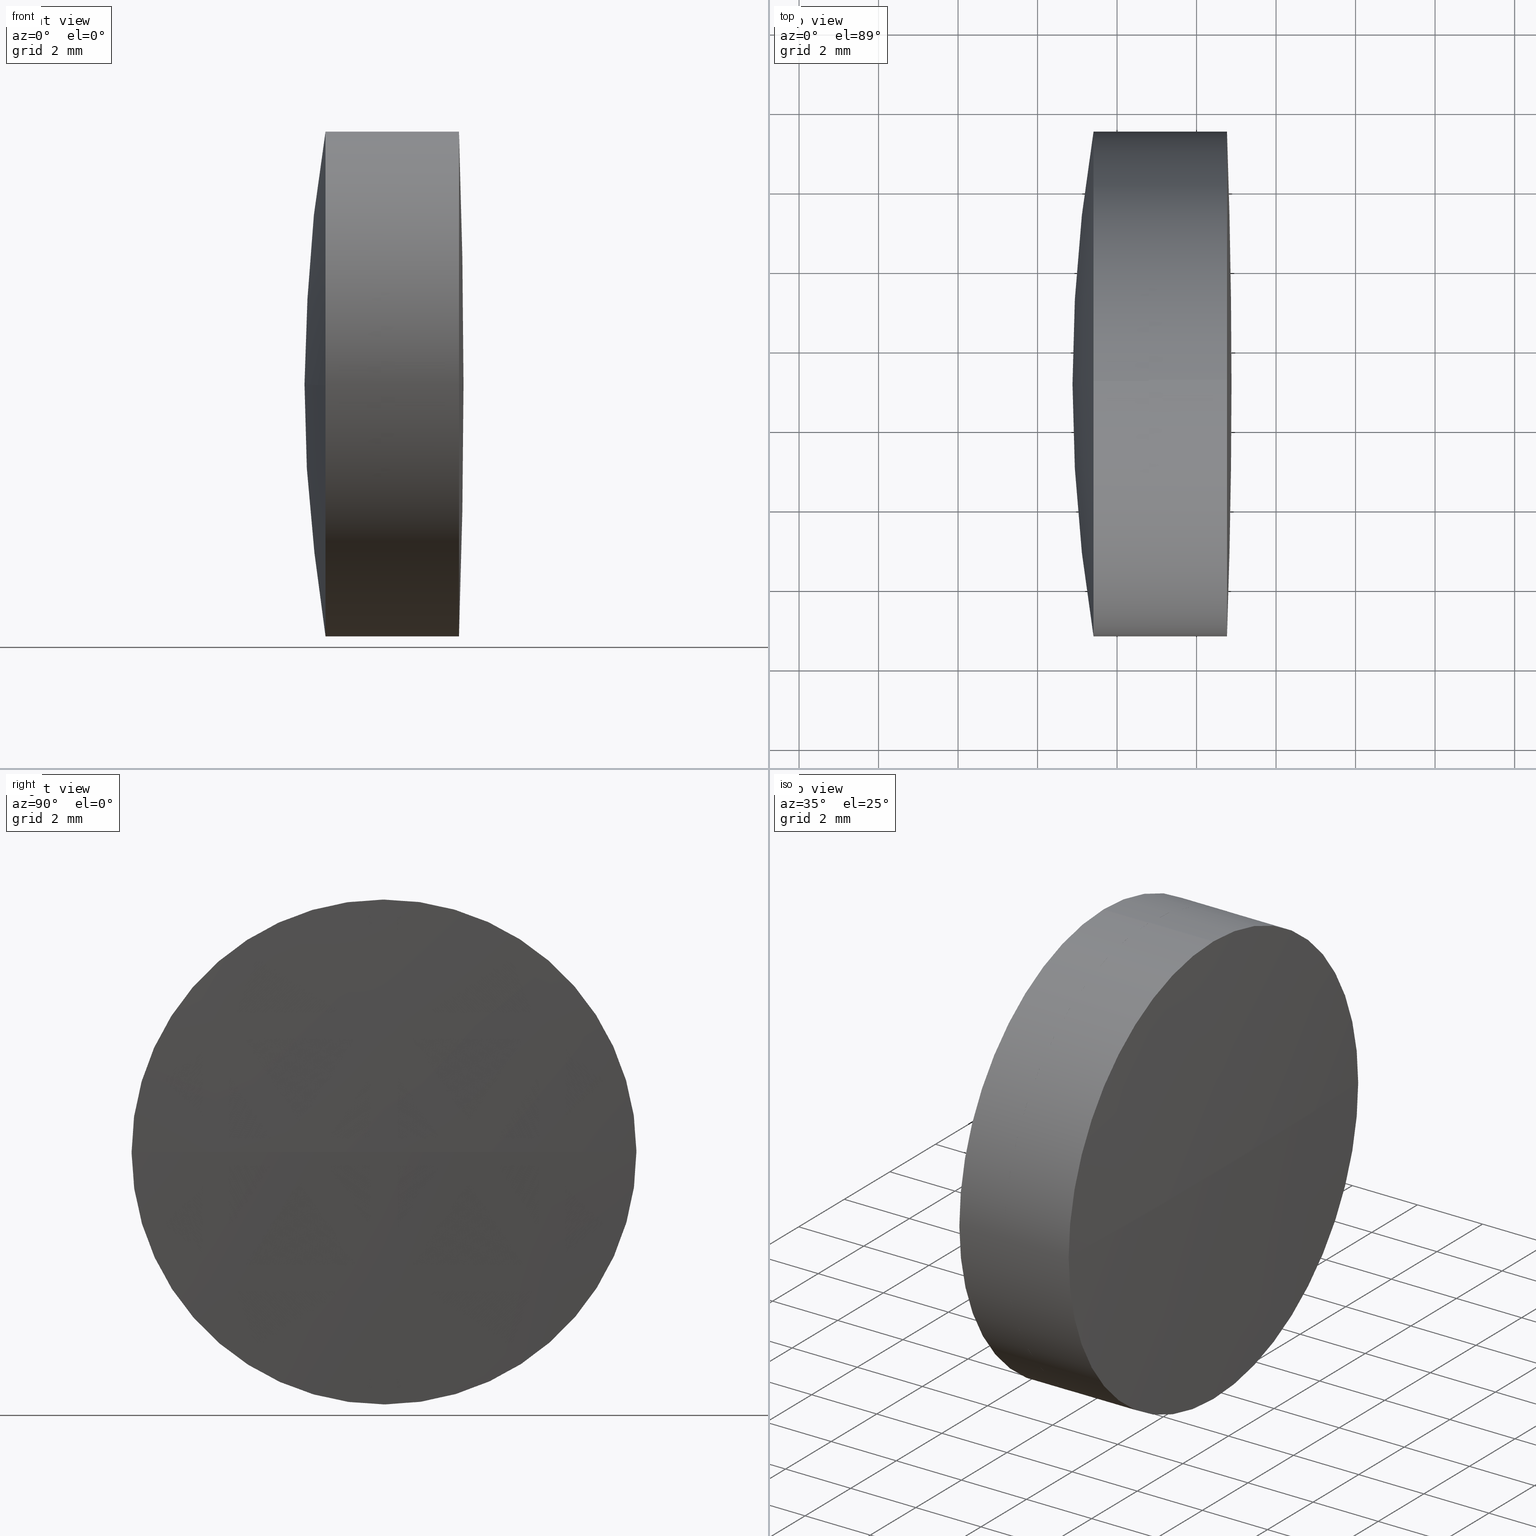
[diagram: canonical four-view strip — front | top / right | iso, engineering-drawing reading convention]
A machine part, canonical four-view strip (front | top / right | iso — engineering-drawing reading convention). The complete STEP part file that produces these views, byte-faithful:
ISO-10303-21;
HEADER;
FILE_DESCRIPTION (( 'STEP AP203' ),
    '1' );
FILE_NAME ('145274.STEP',
    '2024-05-11T05:44:10',
    ( '' ),
    ( '' ),
    'SwSTEP 2.0',
    'SolidWorks 2020',
    '' );
FILE_SCHEMA (( 'CONFIG_CONTROL_DESIGN' ));
ENDSEC;

DATA;
#1 = AXIS2_PLACEMENT_3D ( 'NONE', #147, #36, #34 ) ;
#2 = CARTESIAN_POINT ( 'NONE',  ( 1.407591367722822895, 7.105468109940516364, 3.623841861633804095E-15 ) ) ;
#3 = VERTEX_POINT ( 'NONE', #155 ) ;
#4 = CARTESIAN_POINT ( 'NONE',  ( 39.23836059067149762, 7.105468109940514587, 7.561397270752400406E-15 ) ) ;
#5 = ORIENTED_EDGE ( 'NONE', *, *, #420, .F. ) ;
#6 = CARTESIAN_POINT ( 'NONE',  ( -31.58163940932850977, 7.105468109940518140, 1.902769656164251920E-16 ) ) ;
#7 = ADVANCED_FACE ( 'NONE', ( #259 ), #385, .T. ) ;
#8 = APPLICATION_PROTOCOL_DEFINITION ( 'international standard', 'config_control_design', 1994, #142 ) ;
#9 = DIRECTION ( 'NONE',  ( 1.000000000000000000, -3.773785889902083684E-17, 1.040834085586084010E-16 ) ) ;
#10 = APPLICATION_PROTOCOL_DEFINITION ( 'international standard', 'config_control_design', 1994, #307 ) ;
#11 = ADVANCED_FACE ( 'NONE', ( #390 ), #284, .F. ) ;
#12 = DIRECTION ( 'NONE',  ( -0.000000000000000000, 0.000000000000000000, -1.000000000000000000 ) ) ;
#13 = DIRECTION ( 'NONE',  ( 0.000000000000000000, 0.000000000000000000, 1.000000000000000000 ) ) ;
#14 = APPROVAL ( #414, 'δָ��' ) ;
#15 = VERTEX_POINT ( 'NONE', #323 ) ;
#16 = COORDINATED_UNIVERSAL_TIME_OFFSET ( 8, 0, .AHEAD. ) ;
#17 = DIRECTION ( 'NONE',  ( 1.000000000000000000, -3.773785889902083684E-17, 1.040834085586084010E-16 ) ) ;
#18 = CIRCLE ( 'NONE', #285, 6.349999999999997868 ) ;
#19 = CIRCLE ( 'NONE', #254, 34.96000000000000085 ) ;
#20 = CC_DESIGN_PERSON_AND_ORGANIZATION_ASSIGNMENT ( #223, #383, ( #398 ) ) ;
#21 = CARTESIAN_POINT ( 'NONE',  ( 4.764605047991459230, 13.45546810994060039, 0.000000000000000000 ) ) ;
#22 = FACE_OUTER_BOUND ( 'NONE', #272, .T. ) ;
#23 = EDGE_CURVE ( 'NONE', #251, #115, #86, .T. ) ;
#24 = DIRECTION ( 'NONE',  ( 0.000000000000000000, 0.000000000000000000, 1.000000000000000000 ) ) ;
#25 = AXIS2_PLACEMENT_3D ( 'NONE', #252, #9, #365 ) ;
#26 = PRODUCT_DEFINITION_FORMATION_WITH_SPECIFIED_SOURCE ( '�κ�', '', #246, .NOT_KNOWN. ) ;
#27 = CARTESIAN_POINT ( 'NONE',  ( -172.4116394093285010, 7.105468109940519028, 0.000000000000000000 ) ) ;
#28 = CARTESIAN_POINT ( 'NONE',  ( 4.764605047991442355, 7.105468109940519028, 0.000000000000000000 ) ) ;
#29 = ORIENTED_EDGE ( 'NONE', *, *, #55, .T. ) ;
#30 = CARTESIAN_POINT ( 'NONE',  ( 4.764605047991442355, 7.105468109940519028, 6.349999999999999645 ) ) ;
#31 = ORIENTED_EDGE ( 'NONE', *, *, #96, .T. ) ;
#32 = CC_DESIGN_PERSON_AND_ORGANIZATION_ASSIGNMENT ( #221, #87, ( #246 ) ) ;
#33 = CIRCLE ( 'NONE', #59, 6.349999999999997868 ) ;
#34 = DIRECTION ( 'NONE',  ( 1.000000000000000000, 0.000000000000000000, 0.000000000000000000 ) ) ;
#35 = EDGE_LOOP ( 'NONE', ( #224, #378, #209, #413 ) ) ;
#36 = DIRECTION ( 'NONE',  ( 0.000000000000000000, 0.000000000000000000, 1.000000000000000000 ) ) ;
#37 = ORIENTED_EDGE ( 'NONE', *, *, #395, .T. ) ;
#38 = EDGE_CURVE ( 'NONE', #248, #190, #151, .T. ) ;
#39 = DIRECTION ( 'NONE',  ( -1.000000000000000000, -0.000000000000000000, -0.000000000000000000 ) ) ;
#40 = ORIENTED_EDGE ( 'NONE', *, *, #426, .T. ) ;
#41 = CLOSED_SHELL ( 'NONE', ( #350, #374, #101, #11, #7, #149 ) ) ;
#42 = CARTESIAN_POINT ( 'NONE',  ( 0.000000000000000000, 0.000000000000000000, 0.000000000000000000 ) ) ;
#43 = ORIENTED_EDGE ( 'NONE', *, *, #233, .F. ) ;
#44 = DIRECTION ( 'NONE',  ( 0.000000000000000000, -0.9999851727800013190, -0.005445568854653790904 ) ) ;
#45 = CARTESIAN_POINT ( 'NONE',  ( -31.58163940932850977, 7.105468109940518140, 1.902769656164251920E-16 ) ) ;
#46 = APPROVAL_DATE_TIME ( #214, #105 ) ;
#47 = ORIENTED_EDGE ( 'NONE', *, *, #395, .F. ) ;
#48 = CALENDAR_DATE ( 2024, 11, 5 ) ;
#49 = CIRCLE ( 'NONE', #324, 6.349999999999999645 ) ;
#50 = CC_DESIGN_APPROVAL ( #105, ( #398 ) ) ;
#51 = ORIENTED_EDGE ( 'NONE', *, *, #232, .T. ) ;
#52 = COORDINATED_UNIVERSAL_TIME_OFFSET ( 8, 0, .AHEAD. ) ;
#53 = DIRECTION ( 'NONE',  ( 1.000000000000000000, -3.773785889902083684E-17, 1.040834085586084010E-16 ) ) ;
#54 = SPHERICAL_SURFACE ( 'NONE', #431, 38.35999999999999943 ) ;
#55 = EDGE_CURVE ( 'NONE', #251, #302, #18, .T. ) ;
#56 = CYLINDRICAL_SURFACE ( 'NONE', #244, 6.349999999999997868 ) ;
#57 = AXIS2_PLACEMENT_3D ( 'NONE', #4, #180, #44 ) ;
#58 = CC_DESIGN_PERSON_AND_ORGANIZATION_ASSIGNMENT ( #389, #84, ( #173 ) ) ;
#59 = AXIS2_PLACEMENT_3D ( 'NONE', #377, #210, #445 ) ;
#60 = SHAPE_DEFINITION_REPRESENTATION ( #150, #207 ) ;
#61 = FACE_OUTER_BOUND ( 'NONE', #438, .T. ) ;
#62 = CYLINDRICAL_SURFACE ( 'NONE', #417, 6.349999999999999645 ) ;
#63 = DIRECTION ( 'NONE',  ( -1.000000000000000000, -0.000000000000000000, -0.000000000000000000 ) ) ;
#64 = CIRCLE ( 'NONE', #25, 6.349999999999997868 ) ;
#65 = CC_DESIGN_APPROVAL ( #204, ( #173 ) ) ;
#66 = DIRECTION ( 'NONE',  ( 0.000000000000000000, 1.000000000000000000, 0.000000000000000000 ) ) ;
#67 = CARTESIAN_POINT ( 'NONE',  ( 1.407591367722823339, 0.7555622627875118180, -0.03457936222704791757 ) ) ;
#68 = EDGE_LOOP ( 'NONE', ( #215, #291, #382, #261 ) ) ;
#69 = DIRECTION ( 'NONE',  ( -1.000000000000000000, -0.000000000000000000, -0.000000000000000000 ) ) ;
#70 = ORIENTED_EDGE ( 'NONE', *, *, #225, .F. ) ;
#71 = CIRCLE ( 'NONE', #253, 6.349999999999999645 ) ;
#72 = DIRECTION ( 'NONE',  ( 0.000000000000000000, 0.000000000000000000, 1.000000000000000000 ) ) ;
#73 = ORIENTED_EDGE ( 'NONE', *, *, #249, .F. ) ;
#74 = EDGE_CURVE ( 'NONE', #405, #309, #148, .T. ) ;
#75 = CARTESIAN_POINT ( 'NONE',  ( 3.378360590671493302, 7.105468109940516364, 3.828966239840701631E-15 ) ) ;
#76 = EDGE_LOOP ( 'NONE', ( #43, #120, #47, #442 ) ) ;
#77 = COORDINATED_UNIVERSAL_TIME_OFFSET ( 8, 0, .AHEAD. ) ;
#78 = ORIENTED_EDGE ( 'NONE', *, *, #123, .T. ) ;
#79 = DATE_AND_TIME ( #289, #425 ) ;
#80 = ADVANCED_FACE ( 'NONE', ( #415 ), #388, .T. ) ;
#81 = DIRECTION ( 'NONE',  ( 1.000000000000000000, -3.773785889902083684E-17, 1.040834085586084010E-16 ) ) ;
#82 = CARTESIAN_POINT ( 'NONE',  ( 4.764605047991442355, 7.105468109940519028, 0.000000000000000000 ) ) ;
#83 = DIRECTION ( 'NONE',  ( 1.042873694000733225E-16, 0.005445568854653913202, -0.9999851727800014300 ) ) ;
#84 = PERSON_AND_ORGANIZATION_ROLE ( 'classification_officer' ) ;
#85 = DESIGN_CONTEXT ( 'detailed design', #142, 'design' ) ;
#86 = LINE ( 'NONE', #320, #179 ) ;
#87 = PERSON_AND_ORGANIZATION_ROLE ( 'design_owner' ) ;
#88 = AXIS2_PLACEMENT_3D ( 'NONE', #2, #347, #205 ) ;
#89 = CIRCLE ( 'NONE', #229, 6.349999999999999645 ) ;
#90 = ORIENTED_EDGE ( 'NONE', *, *, #38, .T. ) ;
#91 = CC_DESIGN_DATE_AND_TIME_ASSIGNMENT ( #433, #234, ( #173 ) ) ;
#92 = DIRECTION ( 'NONE',  ( 1.000000000000000000, -3.773785889902083684E-17, 1.040834085586084010E-16 ) ) ;
#93 = MANIFOLD_SOLID_BREP ( '145274a-1-solid1', #41 ) ;
#94 = APPROVAL_STATUS ( 'not_yet_approved' ) ;
#95 = AXIS2_PLACEMENT_3D ( 'NONE', #399, #126, #267 ) ;
#96 = EDGE_CURVE ( 'NONE', #358, #175, #64, .T. ) ;
#97 = DIRECTION ( 'NONE',  ( 0.000000000000000000, 0.9999851727800012080, 0.005445568854653790904 ) ) ;
#98 = CC_DESIGN_SECURITY_CLASSIFICATION ( #173, ( #26 ) ) ;
#99 = ADVANCED_FACE ( 'NONE', ( #297 ), #166, .T. ) ;
#100 = CARTESIAN_POINT ( 'NONE',  ( 0.8783605906714925249, 7.105468109940518140, 3.581548665704631301E-15 ) ) ;
#101 = ADVANCED_FACE ( 'NONE', ( #300 ), #430, .F. ) ;
#102 = CARTESIAN_POINT ( 'NONE',  ( 2.796829142949964986, 7.105468109940519028, 0.000000000000000000 ) ) ;
#103 = DIRECTION ( 'NONE',  ( 0.000000000000000000, 0.9999851727800013190, 0.005445568854653913202 ) ) ;
#104 = AXIS2_PLACEMENT_3D ( 'NONE', #409, #270, #114 ) ;
#105 = APPROVAL ( #317, 'δָ��' ) ;
#106 = CARTESIAN_POINT ( 'NONE',  ( -31.58163940932850977, 7.105468109940519028, 0.000000000000000000 ) ) ;
#107 = VERTEX_POINT ( 'NONE', #331 ) ;
#108 = DIRECTION ( 'NONE',  ( -1.000000000000000000, -0.000000000000000000, -0.000000000000000000 ) ) ;
#109 = EDGE_LOOP ( 'NONE', ( #278, #136, #51, #158 ) ) ;
#110 = DIRECTION ( 'NONE',  ( -0.000000000000000000, 0.000000000000000000, -1.000000000000000000 ) ) ;
#111 = ORIENTED_EDGE ( 'NONE', *, *, #439, .F. ) ;
#112 = AXIS2_PLACEMENT_3D ( 'NONE', #427, #228, #196 ) ;
#113 = AXIS2_PLACEMENT_3D ( 'NONE', #75, #379, #203 ) ;
#114 = DIRECTION ( 'NONE',  ( 0.000000000000000000, -0.9999851727800014300, -0.005445568854653913202 ) ) ;
#115 = VERTEX_POINT ( 'NONE', #299 ) ;
#116 = CIRCLE ( 'NONE', #314, 6.349999999999999645 ) ;
#117 = LOCAL_TIME ( 13, 44, 10.00000000000000000, #52 ) ;
#118 = DIRECTION ( 'NONE',  ( 1.000000000000000000, 0.000000000000000000, 0.000000000000000000 ) ) ;
#119 = ORIENTED_EDGE ( 'NONE', *, *, #344, .T. ) ;
#120 = ORIENTED_EDGE ( 'NONE', *, *, #128, .T. ) ;
#121 = DIRECTION ( 'NONE',  ( 0.000000000000000000, -0.9999851727800012080, -0.005445568854653912334 ) ) ;
#122 = VERTEX_POINT ( 'NONE', #264 ) ;
#123 = EDGE_CURVE ( 'NONE', #115, #358, #266, .T. ) ;
#124 = LOCAL_TIME ( 13, 44, 10.00000000000000000, #77 ) ;
#125 = EDGE_LOOP ( 'NONE', ( #447, #177, #5, #312, #70, #315 ) ) ;
#126 = DIRECTION ( 'NONE',  ( -1.042873694000733349E-16, -0.005445568854653913202, 0.9999851727800013190 ) ) ;
#127 = PERSON ( 'δָ��', 'δָ��', 'δָ��', ('δָ��'), ('δָ��'), ('δָ��') ) ;
#128 = EDGE_CURVE ( 'NONE', #183, #242, #375, .T. ) ;
#129 = CARTESIAN_POINT ( 'NONE',  ( 4.878360590671509733, 7.105468109940529686, 0.000000000000000000 ) ) ;
#130 = CLOSED_SHELL ( 'NONE', ( #197, #260, #99, #192, #80, #334 ) ) ;
#131 = DIRECTION ( 'NONE',  ( 0.000000000000000000, 1.000000000000000000, 0.000000000000000000 ) ) ;
#132 = PERSON_AND_ORGANIZATION ( #127, #364 ) ;
#133 = DIRECTION ( 'NONE',  ( 1.365923996832132102E-16, 0.005445568854653865497, -0.9999851727800014300 ) ) ;
#134 = DIRECTION ( 'NONE',  ( 0.000000000000000000, 0.000000000000000000, -1.000000000000000000 ) ) ;
#135 = CARTESIAN_POINT ( 'NONE',  ( 3.378360590671494634, 7.105468109940514587, 3.817375694304381373E-15 ) ) ;
#136 = ORIENTED_EDGE ( 'NONE', *, *, #391, .T. ) ;
#137 = AXIS2_PLACEMENT_3D ( 'NONE', #441, #443, #103 ) ;
#138 = CARTESIAN_POINT ( 'NONE',  ( -172.4116394093285010, 7.105468109940519028, 0.000000000000000000 ) ) ;
#139 = VERTEX_POINT ( 'NONE', #100 ) ;
#140 = SPHERICAL_SURFACE ( 'NONE', #104, 34.96000000000000085 ) ;
#141 = ORIENTED_EDGE ( 'NONE', *, *, #326, .F. ) ;
#142 = APPLICATION_CONTEXT ( 'configuration controlled 3d designs of mechanical parts and assemblies' ) ;
#143 = FACE_OUTER_BOUND ( 'NONE', #306, .T. ) ;
#144 = ORIENTED_EDGE ( 'NONE', *, *, #74, .F. ) ;
#145 = AXIS2_PLACEMENT_3D ( 'NONE', #313, #178, #369 ) ;
#146 = AXIS2_PLACEMENT_3D ( 'NONE', #82, #282, #319 ) ;
#147 = CARTESIAN_POINT ( 'NONE',  ( -31.58163940932850977, 7.105468109940519028, 0.000000000000000000 ) ) ;
#148 = LINE ( 'NONE', #283, #277 ) ;
#149 = ADVANCED_FACE ( 'NONE', ( #22 ), #62, .T. ) ;
#150 = PRODUCT_DEFINITION_SHAPE ( 'NONE', 'NONE',  #398 ) ;
#151 = LINE ( 'NONE', #188, #200 ) ;
#152 = VECTOR ( 'NONE', #17, 1000.000000000000000 ) ;
#153 = APPROVAL_PERSON_ORGANIZATION ( #256, #14, #416 ) ;
#154 = DATE_AND_TIME ( #349, #304 ) ;
#155 = CARTESIAN_POINT ( 'NONE',  ( 3.378360590671487973, 7.105468109940520804, 0.000000000000000000 ) ) ;
#156 = PERSON_AND_ORGANIZATION_ROLE ( 'creator' ) ;
#157 = CARTESIAN_POINT ( 'NONE',  ( 1.407591367722822895, 7.105468109940516364, 3.623841861633804095E-15 ) ) ;
#158 = ORIENTED_EDGE ( 'NONE', *, *, #410, .T. ) ;
#159 = AXIS2_PLACEMENT_3D ( 'NONE', #265, #397, #97 ) ;
#160 = CIRCLE ( 'NONE', #146, 6.349999999999999645 ) ;
#161 = CARTESIAN_POINT ( 'NONE',  ( 2.796829142949964986, 7.105468109940519028, 0.000000000000000000 ) ) ;
#162 = EDGE_CURVE ( 'NONE', #175, #107, #298, .T. ) ;
#163 = DIRECTION ( 'NONE',  ( 0.000000000000000000, 0.000000000000000000, 1.000000000000000000 ) ) ;
#164 = CARTESIAN_POINT ( 'NONE',  ( 2.796829142949971203, 7.105468109940516364, 3.768438464577824161E-15 ) ) ;
#165 = AXIS2_PLACEMENT_3D ( 'NONE', #318, #222, #392 ) ;
#166 = SPHERICAL_SURFACE ( 'NONE', #95, 38.35999999999999943 ) ;
#167 = DIRECTION ( 'NONE',  ( 0.000000000000000000, 0.9999851727800013190, 0.005445568854653913202 ) ) ;
#168 = DIRECTION ( 'NONE',  ( 1.024442997624099077E-16, 0.005445568854653865497, -0.9999851727800014300 ) ) ;
#169 = ORIENTED_EDGE ( 'NONE', *, *, #269, .T. ) ;
#170 = DIRECTION ( 'NONE',  ( 0.000000000000000000, 1.000000000000000000, 1.224646799147352961E-16 ) ) ;
#171 = CIRCLE ( 'NONE', #159, 34.96000000000000085 ) ;
#172 = EDGE_LOOP ( 'NONE', ( #211, #90, #411, #327, #144, #37 ) ) ;
#173 = SECURITY_CLASSIFICATION ( '', '', #287 ) ;
#174 = CARTESIAN_POINT ( 'NONE',  ( 4.764605047991442355, 7.105468109940519028, 0.000000000000000000 ) ) ;
#175 = VERTEX_POINT ( 'NONE', #363 ) ;
#176 = FACE_OUTER_BOUND ( 'NONE', #172, .T. ) ;
#177 = ORIENTED_EDGE ( 'NONE', *, *, #23, .T. ) ;
#178 = DIRECTION ( 'NONE',  ( 1.000000000000000000, -3.773785889902083684E-17, 1.040834085586084010E-16 ) ) ;
#179 = VECTOR ( 'NONE', #81, 1000.000000000000000 ) ;
#180 = DIRECTION ( 'NONE',  ( -1.042873694000733349E-16, -0.005445568854653790904, 0.9999851727800014300 ) ) ;
#181 = DIRECTION ( 'NONE',  ( 0.000000000000000000, 1.000000000000000000, 0.000000000000000000 ) ) ;
#182 = PERSON_AND_ORGANIZATION ( #127, #364 ) ;
#183 = VERTEX_POINT ( 'NONE', #129 ) ;
#184 =( NAMED_UNIT ( * ) SI_UNIT ( $, .STERADIAN. ) SOLID_ANGLE_UNIT ( ) );
#185 = VERTEX_POINT ( 'NONE', #366 ) ;
#186 = EDGE_CURVE ( 'NONE', #15, #190, #71, .T. ) ;
#187 = DATE_TIME_ROLE ( 'creation_date' ) ;
#188 = CARTESIAN_POINT ( 'NONE',  ( 3.378360590671490193, 7.105468109940519916, -6.349999999999999645 ) ) ;
#189 =( NAMED_UNIT ( * ) PLANE_ANGLE_UNIT ( ) SI_UNIT ( $, .RADIAN. ) );
#190 = VERTEX_POINT ( 'NONE', #295 ) ;
#191 = CALENDAR_DATE ( 2024, 11, 5 ) ;
#192 = ADVANCED_FACE ( 'NONE', ( #61 ), #54, .T. ) ;
#193 = LINE ( 'NONE', #329, #152 ) ;
#194 = AXIS2_PLACEMENT_3D ( 'NONE', #288, #12, #181 ) ;
#195 = CIRCLE ( 'NONE', #440, 6.349999999999997868 ) ;
#196 = DIRECTION ( 'NONE',  ( 0.000000000000000000, 1.000000000000000000, 1.224646799147353454E-16 ) ) ;
#197 = ADVANCED_FACE ( 'NONE', ( #235 ), #56, .T. ) ;
#198 = CARTESIAN_POINT ( 'NONE',  ( 1.407591367722822229, 7.070888747713464539, 6.349905847153010541 ) ) ;
#199 = CARTESIAN_POINT ( 'NONE',  ( -31.58163940932850977, 7.105468109940519028, 0.000000000000000000 ) ) ;
#200 = VECTOR ( 'NONE', #220, 1000.000000000000000 ) ;
#201 = CARTESIAN_POINT ( 'NONE',  ( 3.378360590671493302, 7.105468109940516364, 3.828966239840701631E-15 ) ) ;
#202 = APPROVAL_PERSON_ORGANIZATION ( #258, #105, #381 ) ;
#203 = DIRECTION ( 'NONE',  ( 1.365923996832132102E-16, 0.005445568854653865497, -0.9999851727800014300 ) ) ;
#204 = APPROVAL ( #94, 'δָ��' ) ;
#205 = DIRECTION ( 'NONE',  ( 1.024442997624099077E-16, 0.005445568854653865497, -0.9999851727800014300 ) ) ;
#206 = ORIENTED_EDGE ( 'NONE', *, *, #225, .T. ) ;
#207 = ADVANCED_BREP_SHAPE_REPRESENTATION ( '145274', ( #93, #241, #393 ), #367 ) ;
#208 = DIRECTION ( 'NONE',  ( 0.000000000000000000, 0.000000000000000000, 1.000000000000000000 ) ) ;
#209 = ORIENTED_EDGE ( 'NONE', *, *, #186, .T. ) ;
#210 = DIRECTION ( 'NONE',  ( 1.000000000000000000, -3.773785889902083684E-17, 1.040834085586084010E-16 ) ) ;
#211 = ORIENTED_EDGE ( 'NONE', *, *, #359, .T. ) ;
#212 = DIRECTION ( 'NONE',  ( -1.000000000000000000, -0.000000000000000000, -0.000000000000000000 ) ) ;
#213 = EDGE_LOOP ( 'NONE', ( #370, #29, #169, #206, #361, #274 ) ) ;
#214 = DATE_AND_TIME ( #48, #124 ) ;
#215 = ORIENTED_EDGE ( 'NONE', *, *, #372, .F. ) ;
#216 = CIRCLE ( 'NONE', #137, 38.35999999999999943 ) ;
#217 = MECHANICAL_CONTEXT ( 'NONE', #307, 'mechanical' ) ;
#218 = ORIENTED_EDGE ( 'NONE', *, *, #372, .T. ) ;
#219 = PERSON_AND_ORGANIZATION_ROLE ( 'design_supplier' ) ;
#220 = DIRECTION ( 'NONE',  ( -1.000000000000000000, -0.000000000000000000, -0.000000000000000000 ) ) ;
#221 = PERSON_AND_ORGANIZATION ( #127, #364 ) ;
#222 = DIRECTION ( 'NONE',  ( 0.000000000000000000, 0.000000000000000000, -1.000000000000000000 ) ) ;
#223 = PERSON_AND_ORGANIZATION ( #127, #364 ) ;
#224 = ORIENTED_EDGE ( 'NONE', *, *, #391, .F. ) ;
#225 = EDGE_CURVE ( 'NONE', #422, #175, #193, .T. ) ;
#226 = CALENDAR_DATE ( 2024, 11, 5 ) ;
#227 = CARTESIAN_POINT ( 'NONE',  ( 39.23836059067149762, 7.105468109940514587, 7.561397270752400406E-15 ) ) ;
#228 = DIRECTION ( 'NONE',  ( 0.000000000000000000, 1.224646799147353207E-16, -1.000000000000000000 ) ) ;
#229 = AXIS2_PLACEMENT_3D ( 'NONE', #371, #69, #342 ) ;
#230 = DIRECTION ( 'NONE',  ( 1.365923996832132102E-16, 0.005445568854653865497, -0.9999851727800014300 ) ) ;
#231 = DIRECTION ( 'NONE',  ( -1.000000000000000000, -0.000000000000000000, -0.000000000000000000 ) ) ;
#232 = EDGE_CURVE ( 'NONE', #185, #309, #49, .T. ) ;
#233 = EDGE_CURVE ( 'NONE', #183, #263, #236, .T. ) ;
#234 = DATE_TIME_ROLE ( 'classification_date' ) ;
#235 = FACE_OUTER_BOUND ( 'NONE', #125, .T. ) ;
#236 = CIRCLE ( 'NONE', #112, 177.2899999999999920 ) ;
#237 = APPROVAL_PERSON_ORGANIZATION ( #132, #204, #428 ) ;
#238 = DIRECTION ( 'NONE',  ( 0.000000000000000000, 0.000000000000000000, 1.000000000000000000 ) ) ;
#239 = ORIENTED_EDGE ( 'NONE', *, *, #435, .T. ) ;
#240 = CYLINDRICAL_SURFACE ( 'NONE', #113, 6.349999999999997868 ) ;
#241 = MANIFOLD_SOLID_BREP ( '145274-1-solid1', #130 ) ;
#242 = VERTEX_POINT ( 'NONE', #21 ) ;
#243 = FACE_OUTER_BOUND ( 'NONE', #348, .T. ) ;
#244 = AXIS2_PLACEMENT_3D ( 'NONE', #201, #362, #436 ) ;
#245 = ORIENTED_EDGE ( 'NONE', *, *, #128, .F. ) ;
#246 = PRODUCT ( '145274', '145274', '', ( #217 ) ) ;
#247 = FACE_OUTER_BOUND ( 'NONE', #213, .T. ) ;
#248 = VERTEX_POINT ( 'NONE', #429 ) ;
#249 = EDGE_CURVE ( 'NONE', #107, #325, #171, .T. ) ;
#250 =( LENGTH_UNIT ( ) NAMED_UNIT ( * ) SI_UNIT ( .MILLI., .METRE. ) );
#251 = VERTEX_POINT ( 'NONE', #198 ) ;
#252 = CARTESIAN_POINT ( 'NONE',  ( 2.796829142949971203, 7.105468109940516364, 3.768438464577824161E-15 ) ) ;
#253 = AXIS2_PLACEMENT_3D ( 'NONE', #102, #63, #24 ) ;
#254 = AXIS2_PLACEMENT_3D ( 'NONE', #6, #356, #121 ) ;
#255 = AXIS2_PLACEMENT_3D ( 'NONE', #106, #301, #170 ) ;
#256 = PERSON_AND_ORGANIZATION ( #127, #364 ) ;
#257 = DIRECTION ( 'NONE',  ( -1.000000000000000000, -0.000000000000000000, -0.000000000000000000 ) ) ;
#258 = PERSON_AND_ORGANIZATION ( #127, #364 ) ;
#259 = FACE_OUTER_BOUND ( 'NONE', #76, .T. ) ;
#260 = ADVANCED_FACE ( 'NONE', ( #243 ), #140, .T. ) ;
#261 = ORIENTED_EDGE ( 'NONE', *, *, #296, .F. ) ;
#262 = LOCAL_TIME ( 13, 44, 10.00000000000000000, #16 ) ;
#263 = VERTEX_POINT ( 'NONE', #437 ) ;
#264 = CARTESIAN_POINT ( 'NONE',  ( 1.407591367722823783, 13.45537395709352069, 0.03457936222705594587 ) ) ;
#265 = CARTESIAN_POINT ( 'NONE',  ( -31.58163940932850977, 7.105468109940518140, 1.902769656164251920E-16 ) ) ;
#266 = CIRCLE ( 'NONE', #293, 6.349999999999997868 ) ;
#267 = DIRECTION ( 'NONE',  ( 0.000000000000000000, 0.9999851727800013190, 0.005445568854653913202 ) ) ;
#268 = DIRECTION ( 'NONE',  ( 1.000000000000000000, -3.773785889902083684E-17, 1.040834085586084010E-16 ) ) ;
#269 = EDGE_CURVE ( 'NONE', #302, #422, #351, .T. ) ;
#270 = DIRECTION ( 'NONE',  ( 1.042873694000733225E-16, 0.005445568854653913202, -0.9999851727800014300 ) ) ;
#271 = AXIS2_PLACEMENT_3D ( 'NONE', #275, #339, #338 ) ;
#272 = EDGE_LOOP ( 'NONE', ( #340, #40, #119, #281, #380, #141 ) ) ;
#273 = CARTESIAN_POINT ( 'NONE',  ( 1.407591367722822895, 7.105468109940516364, 3.623841861633804095E-15 ) ) ;
#274 = ORIENTED_EDGE ( 'NONE', *, *, #123, .F. ) ;
#275 = CARTESIAN_POINT ( 'NONE',  ( 3.378360590671490193, 7.105468109940519028, 0.000000000000000000 ) ) ;
#276 = CARTESIAN_POINT ( 'NONE',  ( 1.407591367722823561, 7.140047472167568188, -6.349905847153003435 ) ) ;
#277 = VECTOR ( 'NONE', #257, 1000.000000000000000 ) ;
#278 = ORIENTED_EDGE ( 'NONE', *, *, #310, .F. ) ;
#279 = CIRCLE ( 'NONE', #376, 6.349999999999999645 ) ;
#280 = CARTESIAN_POINT ( 'NONE',  ( 2.796829142949971203, 0.7555622627875122621, -0.03457936222704854901 ) ) ;
#281 = ORIENTED_EDGE ( 'NONE', *, *, #74, .T. ) ;
#282 = DIRECTION ( 'NONE',  ( -1.000000000000000000, -0.000000000000000000, -0.000000000000000000 ) ) ;
#283 = CARTESIAN_POINT ( 'NONE',  ( 3.378360590671490193, 7.105468109940519028, 6.349999999999999645 ) ) ;
#284 = SPHERICAL_SURFACE ( 'NONE', #165, 34.96000000000000085 ) ;
#285 = AXIS2_PLACEMENT_3D ( 'NONE', #157, #53, #419 ) ;
#286 = CIRCLE ( 'NONE', #57, 38.35999999999999943 ) ;
#287 = SECURITY_CLASSIFICATION_LEVEL ( 'unclassified' ) ;
#288 = CARTESIAN_POINT ( 'NONE',  ( -172.4116394093285010, 7.105468109940519028, 0.000000000000000000 ) ) ;
#289 = CALENDAR_DATE ( 2024, 11, 5 ) ;
#290 = UNCERTAINTY_MEASURE_WITH_UNIT (LENGTH_MEASURE( 1.000000000000000082E-05 ), #250, 'distance_accuracy_value', 'NONE');
#291 = ORIENTED_EDGE ( 'NONE', *, *, #439, .T. ) ;
#292 = ORIENTED_EDGE ( 'NONE', *, *, #359, .F. ) ;
#293 = AXIS2_PLACEMENT_3D ( 'NONE', #164, #268, #230 ) ;
#294 = DIRECTION ( 'NONE',  ( -1.000000000000000000, -0.000000000000000000, -0.000000000000000000 ) ) ;
#295 = CARTESIAN_POINT ( 'NONE',  ( 2.796829142949964986, 7.105468109940519916, -6.349999999999999645 ) ) ;
#296 = EDGE_CURVE ( 'NONE', #122, #251, #336, .T. ) ;
#297 = FACE_OUTER_BOUND ( 'NONE', #68, .T. ) ;
#298 = CIRCLE ( 'NONE', #341, 6.349999999999997868 ) ;
#299 = CARTESIAN_POINT ( 'NONE',  ( 2.796829142949970315, 7.070888747713464539, 6.349905847153010541 ) ) ;
#300 = FACE_OUTER_BOUND ( 'NONE', #109, .T. ) ;
#301 = DIRECTION ( 'NONE',  ( 0.000000000000000000, 1.224646799147353207E-16, -1.000000000000000000 ) ) ;
#302 = VERTEX_POINT ( 'NONE', #67 ) ;
#303 = CIRCLE ( 'NONE', #1, 34.96000000000000085 ) ;
#304 = LOCAL_TIME ( 13, 44, 10.00000000000000000, #322 ) ;
#305 = DIRECTION ( 'NONE',  ( -1.000000000000000000, -0.000000000000000000, -0.000000000000000000 ) ) ;
#306 = EDGE_LOOP ( 'NONE', ( #245, #423, #355, #292 ) ) ;
#307 = APPLICATION_CONTEXT ( 'configuration controlled 3d designs of mechanical parts and assemblies' ) ;
#308 = CARTESIAN_POINT ( 'NONE',  ( 2.796829142949964986, 7.105468109940519028, 0.000000000000000000 ) ) ;
#309 = VERTEX_POINT ( 'NONE', #345 ) ;
#310 = EDGE_CURVE ( 'NONE', #3, #15, #303, .T. ) ;
#311 = CYLINDRICAL_SURFACE ( 'NONE', #271, 6.349999999999999645 ) ;
#312 = ORIENTED_EDGE ( 'NONE', *, *, #162, .F. ) ;
#313 = CARTESIAN_POINT ( 'NONE',  ( 1.407591367722822895, 7.105468109940516364, 3.623841861633804095E-15 ) ) ;
#314 = AXIS2_PLACEMENT_3D ( 'NONE', #308, #212, #72 ) ;
#315 = ORIENTED_EDGE ( 'NONE', *, *, #406, .T. ) ;
#316 = AXIS2_PLACEMENT_3D ( 'NONE', #174, #39, #208 ) ;
#317 = APPROVAL_STATUS ( 'not_yet_approved' ) ;
#318 = CARTESIAN_POINT ( 'NONE',  ( -31.58163940932850977, 7.105468109940519028, 0.000000000000000000 ) ) ;
#319 = DIRECTION ( 'NONE',  ( 0.000000000000000000, 0.000000000000000000, 1.000000000000000000 ) ) ;
#320 = CARTESIAN_POINT ( 'NONE',  ( 3.378360590671492414, 7.070888747713464539, 6.349905847153010541 ) ) ;
#321 = CC_DESIGN_DATE_AND_TIME_ASSIGNMENT ( #154, #187, ( #398 ) ) ;
#322 = COORDINATED_UNIVERSAL_TIME_OFFSET ( 8, 0, .AHEAD. ) ;
#323 = CARTESIAN_POINT ( 'NONE',  ( 2.796829142949964986, 13.45546810994050624, 0.000000000000000000 ) ) ;
#324 = AXIS2_PLACEMENT_3D ( 'NONE', #161, #294, #163 ) ;
#325 = VERTEX_POINT ( 'NONE', #135 ) ;
#326 = EDGE_CURVE ( 'NONE', #190, #185, #116, .T. ) ;
#327 = ORIENTED_EDGE ( 'NONE', *, *, #410, .F. ) ;
#328 = DATE_AND_TIME ( #191, #262 ) ;
#329 = CARTESIAN_POINT ( 'NONE',  ( 3.378360590671494190, 7.140047472167568188, -6.349905847153003435 ) ) ;
#330 = AXIS2_PLACEMENT_3D ( 'NONE', #45, #83, #357 ) ;
#331 = CARTESIAN_POINT ( 'NONE',  ( 2.796829142949972091, 13.45537395709352069, 0.03457936222705531443 ) ) ;
#332 = APPROVAL_DATE_TIME ( #328, #204 ) ;
#333 = DIRECTION ( 'NONE',  ( -0.000000000000000000, 0.000000000000000000, 1.000000000000000000 ) ) ;
#334 = ADVANCED_FACE ( 'NONE', ( #247 ), #240, .T. ) ;
#335 = DIRECTION ( 'NONE',  ( 0.000000000000000000, 0.000000000000000000, 1.000000000000000000 ) ) ;
#336 = CIRCLE ( 'NONE', #145, 6.349999999999997868 ) ;
#337 = CIRCLE ( 'NONE', #432, 6.349999999999999645 ) ;
#338 = DIRECTION ( 'NONE',  ( 0.000000000000000000, 0.000000000000000000, 1.000000000000000000 ) ) ;
#339 = DIRECTION ( 'NONE',  ( -1.000000000000000000, -0.000000000000000000, -0.000000000000000000 ) ) ;
#340 = ORIENTED_EDGE ( 'NONE', *, *, #38, .F. ) ;
#341 = AXIS2_PLACEMENT_3D ( 'NONE', #402, #92, #133 ) ;
#342 = DIRECTION ( 'NONE',  ( 0.000000000000000000, 0.000000000000000000, 1.000000000000000000 ) ) ;
#343 = ORIENTED_EDGE ( 'NONE', *, *, #269, .F. ) ;
#344 = EDGE_CURVE ( 'NONE', #263, #405, #337, .T. ) ;
#345 = CARTESIAN_POINT ( 'NONE',  ( 2.796829142949964986, 7.105468109940519028, 6.349999999999999645 ) ) ;
#346 = ORIENTED_EDGE ( 'NONE', *, *, #162, .T. ) ;
#347 = DIRECTION ( 'NONE',  ( 1.000000000000000000, -3.773785889902083684E-17, 1.040834085586084010E-16 ) ) ;
#348 = EDGE_LOOP ( 'NONE', ( #31, #346, #373, #444 ) ) ;
#349 = CALENDAR_DATE ( 2024, 11, 5 ) ;
#350 = ADVANCED_FACE ( 'NONE', ( #176 ), #311, .T. ) ;
#351 = CIRCLE ( 'NONE', #88, 6.349999999999997868 ) ;
#352 = CARTESIAN_POINT ( 'NONE',  ( 4.764605047991442355, 7.105468109940519028, 0.000000000000000000 ) ) ;
#353 = CIRCLE ( 'NONE', #316, 6.349999999999999645 ) ;
#354 = APPROVAL_DATE_TIME ( #79, #14 ) ;
#355 = ORIENTED_EDGE ( 'NONE', *, *, #426, .F. ) ;
#356 = DIRECTION ( 'NONE',  ( -1.042873694000733349E-16, -0.005445568854653913202, 0.9999851727800014300 ) ) ;
#357 = DIRECTION ( 'NONE',  ( 0.000000000000000000, -0.9999851727800014300, -0.005445568854653913202 ) ) ;
#358 = VERTEX_POINT ( 'NONE', #280 ) ;
#359 = EDGE_CURVE ( 'NONE', #242, #248, #353, .T. ) ;
#360 = COORDINATED_UNIVERSAL_TIME_OFFSET ( 8, 0, .AHEAD. ) ;
#361 = ORIENTED_EDGE ( 'NONE', *, *, #96, .F. ) ;
#362 = DIRECTION ( 'NONE',  ( 1.000000000000000000, -3.773785889902083684E-17, 1.040834085586084010E-16 ) ) ;
#363 = CARTESIAN_POINT ( 'NONE',  ( 2.796829142949972091, 7.140047472167568188, -6.349905847153003435 ) ) ;
#364 = ORGANIZATION ( 'δָ��', 'δָ��', '' ) ;
#365 = DIRECTION ( 'NONE',  ( 1.365923996832132102E-16, 0.005445568854653865497, -0.9999851727800014300 ) ) ;
#366 = CARTESIAN_POINT ( 'NONE',  ( 2.796829142949964986, 0.7554681099405298195, -7.776507174585679344E-16 ) ) ;
#367 =( GEOMETRIC_REPRESENTATION_CONTEXT ( 3 ) GLOBAL_UNCERTAINTY_ASSIGNED_CONTEXT ( ( #290 ) ) GLOBAL_UNIT_ASSIGNED_CONTEXT ( ( #250, #189, #184 ) ) REPRESENTATION_CONTEXT ( 'NONE', 'WORKASPACE' ) );
#368 = SPHERICAL_SURFACE ( 'NONE', #386, 177.2899999999999920 ) ;
#369 = DIRECTION ( 'NONE',  ( 1.024442997624099077E-16, 0.005445568854653865497, -0.9999851727800014300 ) ) ;
#370 = ORIENTED_EDGE ( 'NONE', *, *, #23, .F. ) ;
#371 = CARTESIAN_POINT ( 'NONE',  ( 2.796829142949964986, 7.105468109940519028, 0.000000000000000000 ) ) ;
#372 = EDGE_CURVE ( 'NONE', #139, #122, #216, .T. ) ;
#373 = ORIENTED_EDGE ( 'NONE', *, *, #249, .T. ) ;
#374 = ADVANCED_FACE ( 'NONE', ( #143 ), #368, .T. ) ;
#375 = CIRCLE ( 'NONE', #384, 177.2899999999999920 ) ;
#376 = AXIS2_PLACEMENT_3D ( 'NONE', #28, #108, #238 ) ;
#377 = CARTESIAN_POINT ( 'NONE',  ( 2.796829142949971203, 7.105468109940516364, 3.768438464577824161E-15 ) ) ;
#378 = ORIENTED_EDGE ( 'NONE', *, *, #310, .T. ) ;
#379 = DIRECTION ( 'NONE',  ( 1.000000000000000000, -3.773785889902083684E-17, 1.040834085586084010E-16 ) ) ;
#380 = ORIENTED_EDGE ( 'NONE', *, *, #232, .F. ) ;
#381 = APPROVAL_ROLE ( '' ) ;
#382 = ORIENTED_EDGE ( 'NONE', *, *, #55, .F. ) ;
#383 = PERSON_AND_ORGANIZATION_ROLE ( 'creator' ) ;
#384 = AXIS2_PLACEMENT_3D ( 'NONE', #27, #333, #434 ) ;
#385 = SPHERICAL_SURFACE ( 'NONE', #194, 177.2899999999999920 ) ;
#386 = AXIS2_PLACEMENT_3D ( 'NONE', #138, #110, #66 ) ;
#387 = PERSON_AND_ORGANIZATION ( #127, #364 ) ;
#388 = SPHERICAL_SURFACE ( 'NONE', #330, 34.96000000000000085 ) ;
#389 = PERSON_AND_ORGANIZATION ( #127, #364 ) ;
#390 = FACE_OUTER_BOUND ( 'NONE', #35, .T. ) ;
#391 = EDGE_CURVE ( 'NONE', #3, #185, #418, .T. ) ;
#392 = DIRECTION ( 'NONE',  ( 0.000000000000000000, 1.000000000000000000, 0.000000000000000000 ) ) ;
#393 = AXIS2_PLACEMENT_3D ( 'NONE', #42, #13, #118 ) ;
#394 = ORIENTED_EDGE ( 'NONE', *, *, #420, .T. ) ;
#395 = EDGE_CURVE ( 'NONE', #405, #242, #279, .T. ) ;
#396 = CARTESIAN_POINT ( 'NONE',  ( 3.378360590671490193, 7.105468109940519028, 0.000000000000000000 ) ) ;
#397 = DIRECTION ( 'NONE',  ( 1.042873694000733349E-16, 0.005445568854653790904, -0.9999851727800014300 ) ) ;
#398 = PRODUCT_DEFINITION ( 'δ֪', '', #26, #85 ) ;
#399 = CARTESIAN_POINT ( 'NONE',  ( 39.23836059067149762, 7.105468109940514587, 7.561397270752400406E-15 ) ) ;
#400 = PRODUCT_RELATED_PRODUCT_CATEGORY ( 'detail', '', ( #246 ) ) ;
#401 = DIRECTION ( 'NONE',  ( -1.042873694000733349E-16, -0.005445568854653913202, 0.9999851727800013190 ) ) ;
#402 = CARTESIAN_POINT ( 'NONE',  ( 2.796829142949971203, 7.105468109940516364, 3.768438464577824161E-15 ) ) ;
#403 = CC_DESIGN_PERSON_AND_ORGANIZATION_ASSIGNMENT ( #182, #156, ( #26 ) ) ;
#404 = DIRECTION ( 'NONE',  ( 0.000000000000000000, 0.000000000000000000, 1.000000000000000000 ) ) ;
#405 = VERTEX_POINT ( 'NONE', #30 ) ;
#406 = EDGE_CURVE ( 'NONE', #422, #122, #195, .T. ) ;
#407 = DIRECTION ( 'NONE',  ( 1.000000000000000000, -3.773785889902083684E-17, 1.040834085586084010E-16 ) ) ;
#408 = ORIENTED_EDGE ( 'NONE', *, *, #406, .F. ) ;
#409 = CARTESIAN_POINT ( 'NONE',  ( -31.58163940932850977, 7.105468109940518140, 1.902769656164251920E-16 ) ) ;
#410 = EDGE_CURVE ( 'NONE', #309, #15, #89, .T. ) ;
#411 = ORIENTED_EDGE ( 'NONE', *, *, #186, .F. ) ;
#412 = CC_DESIGN_APPROVAL ( #14, ( #26 ) ) ;
#413 = ORIENTED_EDGE ( 'NONE', *, *, #326, .T. ) ;
#414 = APPROVAL_STATUS ( 'not_yet_approved' ) ;
#415 = FACE_OUTER_BOUND ( 'NONE', #421, .T. ) ;
#416 = APPROVAL_ROLE ( '' ) ;
#417 = AXIS2_PLACEMENT_3D ( 'NONE', #396, #231, #335 ) ;
#418 = CIRCLE ( 'NONE', #255, 34.96000000000000085 ) ;
#419 = DIRECTION ( 'NONE',  ( 1.024442997624099077E-16, 0.005445568854653865497, -0.9999851727800014300 ) ) ;
#420 = EDGE_CURVE ( 'NONE', #107, #115, #33, .T. ) ;
#421 = EDGE_LOOP ( 'NONE', ( #73, #394, #78, #239 ) ) ;
#422 = VERTEX_POINT ( 'NONE', #276 ) ;
#423 = ORIENTED_EDGE ( 'NONE', *, *, #233, .T. ) ;
#424 = AXIS2_PLACEMENT_3D ( 'NONE', #199, #134, #131 ) ;
#425 = LOCAL_TIME ( 13, 44, 10.00000000000000000, #360 ) ;
#426 = EDGE_CURVE ( 'NONE', #248, #263, #160, .T. ) ;
#427 = CARTESIAN_POINT ( 'NONE',  ( -172.4116394093285010, 7.105468109940519028, 0.000000000000000000 ) ) ;
#428 = APPROVAL_ROLE ( '' ) ;
#429 = CARTESIAN_POINT ( 'NONE',  ( 4.764605047991442355, 7.105468109940519916, -6.349999999999999645 ) ) ;
#430 = SPHERICAL_SURFACE ( 'NONE', #424, 34.96000000000000085 ) ;
#431 = AXIS2_PLACEMENT_3D ( 'NONE', #227, #401, #167 ) ;
#432 = AXIS2_PLACEMENT_3D ( 'NONE', #352, #305, #404 ) ;
#433 = DATE_AND_TIME ( #226, #117 ) ;
#434 = DIRECTION ( 'NONE',  ( 1.000000000000000000, 0.000000000000000000, 0.000000000000000000 ) ) ;
#435 = EDGE_CURVE ( 'NONE', #358, #325, #19, .T. ) ;
#436 = DIRECTION ( 'NONE',  ( 1.365923996832132102E-16, 0.005445568854653865497, -0.9999851727800014300 ) ) ;
#437 = CARTESIAN_POINT ( 'NONE',  ( 4.764605047991459230, 0.7554681099404365607, -7.776507174585793729E-16 ) ) ;
#438 = EDGE_LOOP ( 'NONE', ( #111, #218, #408, #343 ) ) ;
#439 = EDGE_CURVE ( 'NONE', #139, #302, #286, .T. ) ;
#440 = AXIS2_PLACEMENT_3D ( 'NONE', #273, #407, #168 ) ;
#441 = CARTESIAN_POINT ( 'NONE',  ( 39.23836059067149762, 7.105468109940514587, 7.561397270752400406E-15 ) ) ;
#442 = ORIENTED_EDGE ( 'NONE', *, *, #344, .F. ) ;
#443 = DIRECTION ( 'NONE',  ( 1.042873694000733349E-16, 0.005445568854653913202, -0.9999851727800014300 ) ) ;
#444 = ORIENTED_EDGE ( 'NONE', *, *, #435, .F. ) ;
#445 = DIRECTION ( 'NONE',  ( 1.365923996832132102E-16, 0.005445568854653865497, -0.9999851727800014300 ) ) ;
#446 = CC_DESIGN_PERSON_AND_ORGANIZATION_ASSIGNMENT ( #387, #219, ( #26 ) ) ;
#447 = ORIENTED_EDGE ( 'NONE', *, *, #296, .T. ) ;
ENDSEC;
END-ISO-10303-21;
